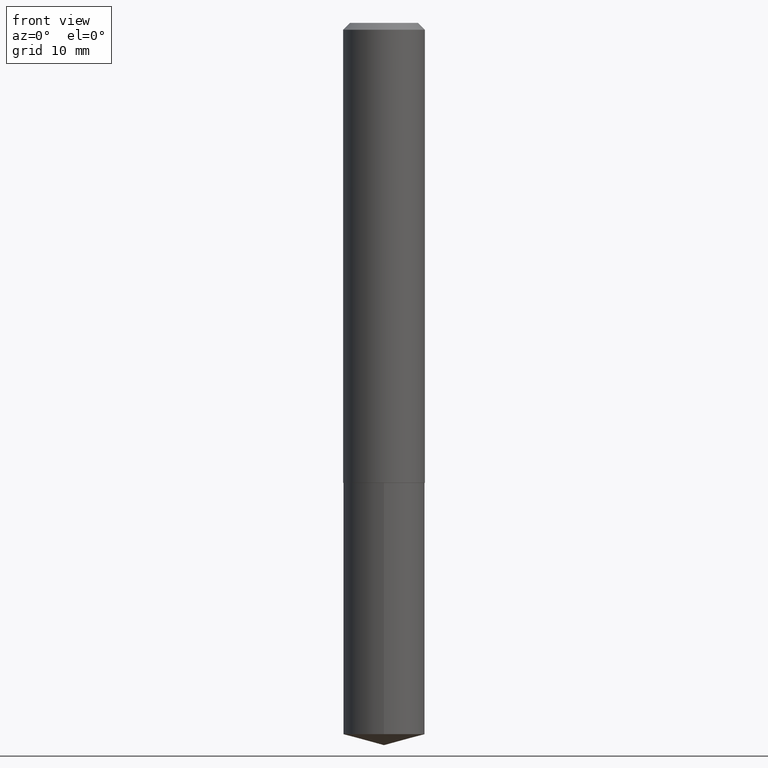
[diagram: clean part render]
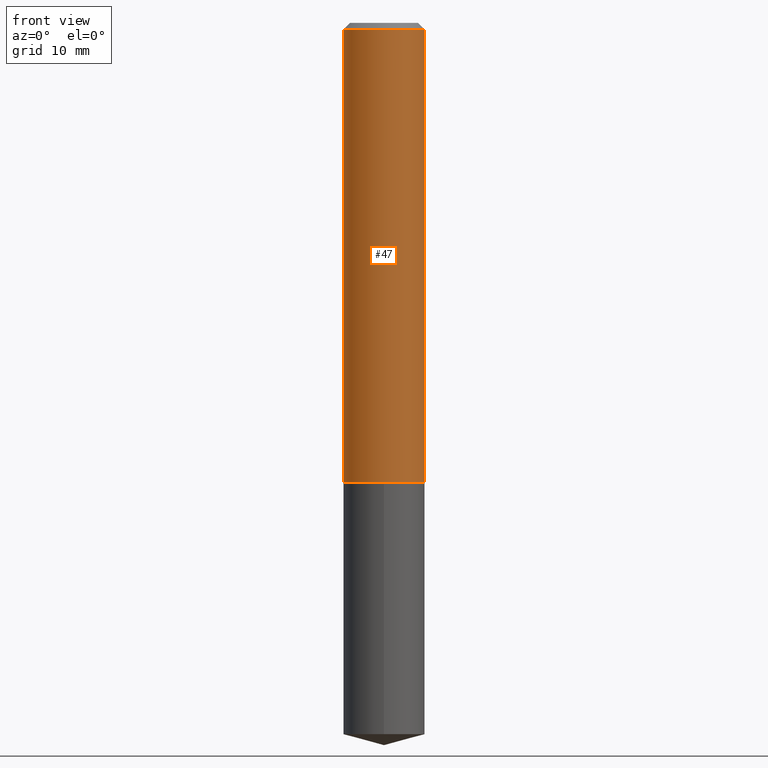
[diagram: same view with one face highlighted and labeled with its STEP entity id]
A machine part, front view. The second image highlights one B-rep face of the part: STEP entity #47.
In plain terms, the highlighted cylindrical surface (partial cylindrical patch) has radius 4.7498 mm, axis along (-0, 0, 1).
Its self-contained STEP definition (entity closure, byte-faithful):
#7 = EDGE_CURVE ( 'NONE', #265, #26, #304, .T. ) ;
#26 = VERTEX_POINT ( 'NONE', #219 ) ;
#30 = CIRCLE ( 'NONE', #162, 0.1870000000000002771 ) ;
#47 = ADVANCED_FACE ( 'NONE', ( #141 ), #259, .T. ) ;
#63 = DIRECTION ( 'NONE',  ( 1.000000000000000000, -6.982962677686265133E-15, 0.000000000000000000 ) ) ;
#73 = CARTESIAN_POINT ( 'NONE',  ( 7.642090019328603538E-31, -1.091087918388490390E-16, -0.03125000000000021511 ) ) ;
#77 = CIRCLE ( 'NONE', #220, 0.1870000000000000551 ) ;
#87 = EDGE_CURVE ( 'NONE', #290, #265, #30, .T. ) ;
#91 = CARTESIAN_POINT ( 'NONE',  ( -0.1870000000000002771, -6.023646487464508570E-15, -2.105800000000000338 ) ) ;
#105 = ORIENTED_EDGE ( 'NONE', *, *, #87, .T. ) ;
#115 = DIRECTION ( 'NONE',  ( -2.445468806185136877E-29, 3.491481338843145188E-15, 1.000000000000000000 ) ) ;
#141 = FACE_OUTER_BOUND ( 'NONE', #201, .T. ) ;
#147 = CARTESIAN_POINT ( 'NONE',  ( -0.1870000000000001383, 1.328714915871388330E-15, -9.198408618776680107E-30 ) ) ;
#149 = VECTOR ( 'NONE', #269, 39.37007874015748143 ) ;
#162 = AXIS2_PLACEMENT_3D ( 'NONE', #181, #366, #63 ) ;
#168 = ORIENTED_EDGE ( 'NONE', *, *, #285, .F. ) ;
#181 = CARTESIAN_POINT ( 'NONE',  ( 5.149668212064661332E-29, -7.352361403335897886E-15, -2.105800000000000338 ) ) ;
#186 = DIRECTION ( 'NONE',  ( 1.000000000000000000, -6.982962677686266711E-15, 0.000000000000000000 ) ) ;
#201 = EDGE_LOOP ( 'NONE', ( #168, #105, #279, #257 ) ) ;
#203 = VERTEX_POINT ( 'NONE', #296 ) ;
#219 = CARTESIAN_POINT ( 'NONE',  ( 0.1870000000000000551, -1.414922812566181102E-15, -0.03125000000000021511 ) ) ;
#220 = AXIS2_PLACEMENT_3D ( 'NONE', #73, #372, #186 ) ;
#257 = ORIENTED_EDGE ( 'NONE', *, *, #351, .F. ) ;
#259 = CYLINDRICAL_SURFACE ( 'NONE', #371, 0.1870000000000001383 ) ;
#265 = VERTEX_POINT ( 'NONE', #330 ) ;
#269 = DIRECTION ( 'NONE',  ( -2.445468806185136877E-29, 3.491481338843145188E-15, 1.000000000000000000 ) ) ;
#279 = ORIENTED_EDGE ( 'NONE', *, *, #7, .T. ) ;
#280 = VECTOR ( 'NONE', #115, 39.37007874015748143 ) ;
#284 = DIRECTION ( 'NONE',  ( -2.445468806185136597E-29, 3.491481338843145583E-15, 1.000000000000000000 ) ) ;
#285 = EDGE_CURVE ( 'NONE', #290, #203, #298, .T. ) ;
#290 = VERTEX_POINT ( 'NONE', #91 ) ;
#296 = CARTESIAN_POINT ( 'NONE',  ( -0.1870000000000000551, -2.402020181715984177E-15, -0.03125000000000021511 ) ) ;
#298 = LINE ( 'NONE', #147, #280 ) ;
#304 = LINE ( 'NONE', #329, #149 ) ;
#329 = CARTESIAN_POINT ( 'NONE',  ( 0.1870000000000001383, -1.305814020727332790E-15, 9.118450570738406715E-30 ) ) ;
#330 = CARTESIAN_POINT ( 'NONE',  ( 0.1870000000000002771, -8.658175424063231465E-15, -2.105800000000000338 ) ) ;
#351 = EDGE_CURVE ( 'NONE', #203, #26, #77, .T. ) ;
#366 = DIRECTION ( 'NONE',  ( -2.445468806185136597E-29, 3.491481338843145583E-15, 1.000000000000000000 ) ) ;
#371 = AXIS2_PLACEMENT_3D ( 'NONE', #387, #284, #378 ) ;
#372 = DIRECTION ( 'NONE',  ( -2.445468806185136597E-29, 3.491481338843145583E-15, 1.000000000000000000 ) ) ;
#378 = DIRECTION ( 'NONE',  ( 1.000000000000000000, -6.982962677686266711E-15, 4.876176775795935793E-29 ) ) ;
#387 = CARTESIAN_POINT ( 'NONE',  ( 0.000000000000000000, 0.000000000000000000, 0.000000000000000000 ) ) ;